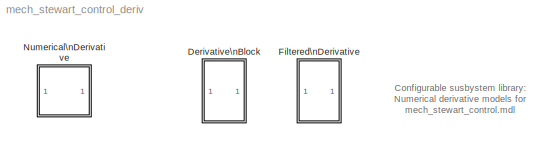
MODEL mech_stewart_control_deriv
KIND library
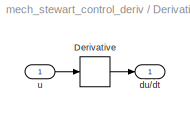
BLOCK [SubSystem] Derivative\nBlock
  FunctionWithSeparateData = off
  MaskHideContents = off
  MinAlgLoopOccurrences = off
  Opaque = off
  Ports = [1, 1]
  PropExecContextOutsideSubsystem = off
  RTWSystemCode = Auto
  RequestExecContextInheritance = off
BLOCK [Derivative] Derivative\nBlock/Derivative
BLOCK [Outport] Derivative\nBlock/du//dt
  IconDisplay = Port number
  OutDataType = sfix(16)
  OutScaling = 2^0
BLOCK [Inport] Derivative\nBlock/u
  IconDisplay = Port number
  OutDataType = sfix(16)
  OutScaling = 2^0
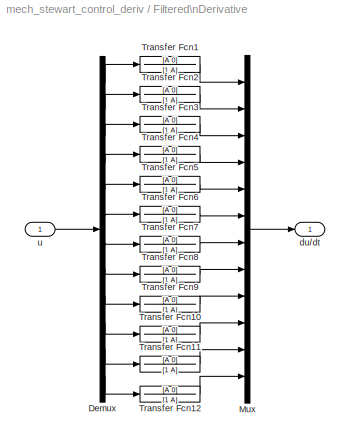
BLOCK [SubSystem] Filtered\nDerivative
  FunctionWithSeparateData = off
  MaskHideContents = off
  MinAlgLoopOccurrences = off
  Opaque = off
  Ports = [1, 1]
  PropExecContextOutsideSubsystem = off
  RTWSystemCode = Auto
  RequestExecContextInheritance = off
BLOCK [Demux] Filtered\nDerivative/Demux
  Outputs = 12
  Ports = [1, 12]
BLOCK [Mux] Filtered\nDerivative/Mux
  DisplayOption = bar
  Inputs = 12
  Ports = [12, 1]
BLOCK [TransferFcn] Filtered\nDerivative/Transfer Fcn1
  Denominator = [1 A]
  Numerator = [A 0]
BLOCK [TransferFcn] Filtered\nDerivative/Transfer Fcn10
  Denominator = [1 A]
  Numerator = [A 0]
BLOCK [TransferFcn] Filtered\nDerivative/Transfer Fcn11
  Denominator = [1 A]
  Numerator = [A 0]
BLOCK [TransferFcn] Filtered\nDerivative/Transfer Fcn12
  Denominator = [1 A]
  Numerator = [A 0]
BLOCK [TransferFcn] Filtered\nDerivative/Transfer Fcn2
  Denominator = [1 A]
  Numerator = [A 0]
BLOCK [TransferFcn] Filtered\nDerivative/Transfer Fcn3
  Denominator = [1 A]
  Numerator = [A 0]
BLOCK [TransferFcn] Filtered\nDerivative/Transfer Fcn4
  Denominator = [1 A]
  Numerator = [A 0]
BLOCK [TransferFcn] Filtered\nDerivative/Transfer Fcn5
  Denominator = [1 A]
  Numerator = [A 0]
BLOCK [TransferFcn] Filtered\nDerivative/Transfer Fcn6
  Denominator = [1 A]
  Numerator = [A 0]
BLOCK [TransferFcn] Filtered\nDerivative/Transfer Fcn7
  Denominator = [1 A]
  Numerator = [A 0]
BLOCK [TransferFcn] Filtered\nDerivative/Transfer Fcn8
  Denominator = [1 A]
  Numerator = [A 0]
BLOCK [TransferFcn] Filtered\nDerivative/Transfer Fcn9
  Denominator = [1 A]
  Numerator = [A 0]
BLOCK [Outport] Filtered\nDerivative/du//dt
  IconDisplay = Port number
  OutDataType = sfix(16)
  OutScaling = 2^0
BLOCK [Inport] Filtered\nDerivative/u
  IconDisplay = Port number
  OutDataType = sfix(16)
  OutScaling = 2^0
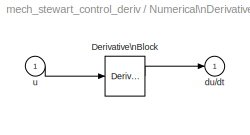
BLOCK [SubSystem] Numerical\nDerivative 
  BlockChoice = Derivative Block
  FunctionWithSeparateData = off
  MaskHideContents = off
  MemberBlocks = Derivative Block,Filtered Derivative
  MinAlgLoopOccurrences = off
  Opaque = off
  Ports = [1, 1]
  PropExecContextOutsideSubsystem = off
  RTWSystemCode = Auto
  RequestExecContextInheritance = off
  TemplateBlock = self
BLOCK [Reference] Numerical\nDerivative /Derivative\nBlock  REF=mech_stewart_control_deriv/Derivative\nBlock  (lib defined in mdl_8fd183852237, mdl_c01f4ac7cae9)
  FunctionWithSeparateData = off
  Ports = [1, 1]
  RTWMemSecDataConstants = Inherit from model
  RTWMemSecDataInternal = Inherit from model
  RTWMemSecDataParameters = Inherit from model
  RTWMemSecFuncExecute = Inherit from model
  RTWMemSecFuncInitTerm = Inherit from model
  ShowPortLabels = FromPortIcon
  SourceBlock = mech_stewart_control_deriv/Derivative\nBlock
  SourceType = SubSystem
  SystemSampleTime = -1
BLOCK [Outport] Numerical\nDerivative /du//dt
  IconDisplay = Port number
  OutDataType = sfix(16)
  OutScaling = 2^0
BLOCK [Inport] Numerical\nDerivative /u
  IconDisplay = Port number
  OutDataType = sfix(16)
  OutScaling = 2^0
ANNOTATION (root): Configurable susbystem library:\nNumerical derivative models for\nmech_stewart_control.mdl
LINE Derivative\nBlock/Derivative:1 -> Derivative\nBlock/du//dt:1
LINE Derivative\nBlock/u:1 -> Derivative\nBlock/Derivative:1
LINE Filtered\nDerivative/Demux:1 -> Filtered\nDerivative/Transfer Fcn1:1
LINE Filtered\nDerivative/Demux:10 -> Filtered\nDerivative/Transfer Fcn10:1
LINE Filtered\nDerivative/Demux:11 -> Filtered\nDerivative/Transfer Fcn11:1
LINE Filtered\nDerivative/Demux:12 -> Filtered\nDerivative/Transfer Fcn12:1
LINE Filtered\nDerivative/Demux:2 -> Filtered\nDerivative/Transfer Fcn2:1
LINE Filtered\nDerivative/Demux:3 -> Filtered\nDerivative/Transfer Fcn3:1
LINE Filtered\nDerivative/Demux:4 -> Filtered\nDerivative/Transfer Fcn4:1
LINE Filtered\nDerivative/Demux:5 -> Filtered\nDerivative/Transfer Fcn5:1
LINE Filtered\nDerivative/Demux:6 -> Filtered\nDerivative/Transfer Fcn6:1
LINE Filtered\nDerivative/Demux:7 -> Filtered\nDerivative/Transfer Fcn7:1
LINE Filtered\nDerivative/Demux:8 -> Filtered\nDerivative/Transfer Fcn8:1
LINE Filtered\nDerivative/Demux:9 -> Filtered\nDerivative/Transfer Fcn9:1
LINE Filtered\nDerivative/Mux:1 -> Filtered\nDerivative/du//dt:1
LINE Filtered\nDerivative/Transfer Fcn10:1 -> Filtered\nDerivative/Mux:10
LINE Filtered\nDerivative/Transfer Fcn11:1 -> Filtered\nDerivative/Mux:11
LINE Filtered\nDerivative/Transfer Fcn12:1 -> Filtered\nDerivative/Mux:12
LINE Filtered\nDerivative/Transfer Fcn1:1 -> Filtered\nDerivative/Mux:1
LINE Filtered\nDerivative/Transfer Fcn2:1 -> Filtered\nDerivative/Mux:2
LINE Filtered\nDerivative/Transfer Fcn3:1 -> Filtered\nDerivative/Mux:3
LINE Filtered\nDerivative/Transfer Fcn4:1 -> Filtered\nDerivative/Mux:4
LINE Filtered\nDerivative/Transfer Fcn5:1 -> Filtered\nDerivative/Mux:5
LINE Filtered\nDerivative/Transfer Fcn6:1 -> Filtered\nDerivative/Mux:6
LINE Filtered\nDerivative/Transfer Fcn7:1 -> Filtered\nDerivative/Mux:7
LINE Filtered\nDerivative/Transfer Fcn8:1 -> Filtered\nDerivative/Mux:8
LINE Filtered\nDerivative/Transfer Fcn9:1 -> Filtered\nDerivative/Mux:9
LINE Filtered\nDerivative/u:1 -> Filtered\nDerivative/Demux:1
LINE Numerical\nDerivative /Derivative\nBlock:1 -> Numerical\nDerivative /du//dt:1
LINE Numerical\nDerivative /u:1 -> Numerical\nDerivative /Derivative\nBlock:1
